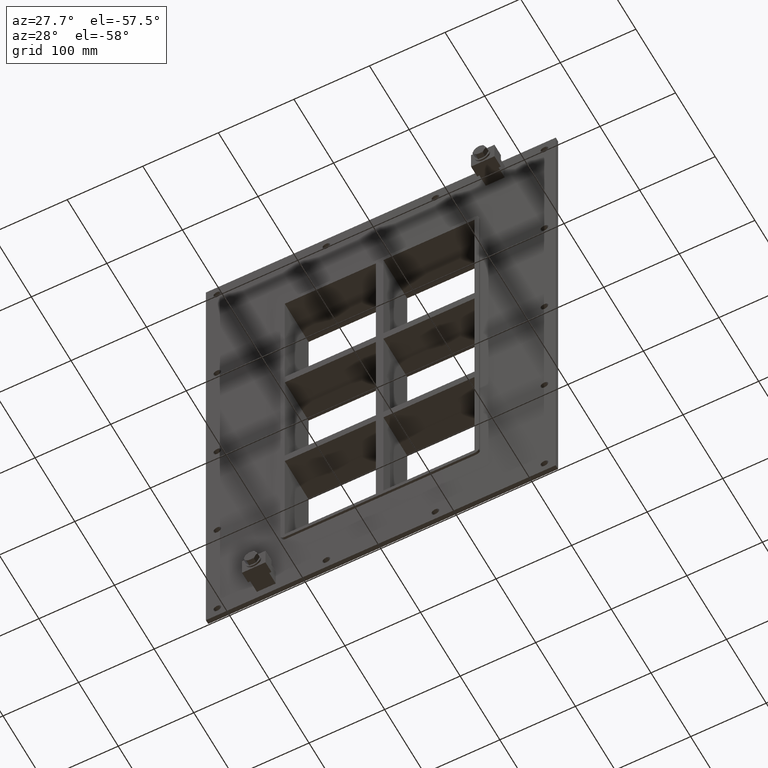
[diagram: clean part render]
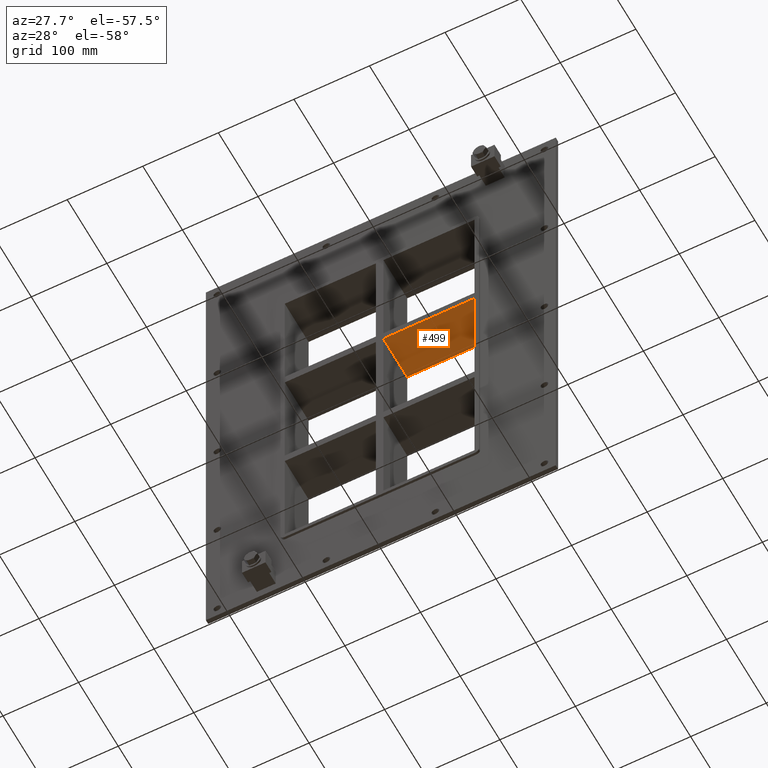
[diagram: same view with one face highlighted and labeled with its STEP entity id]
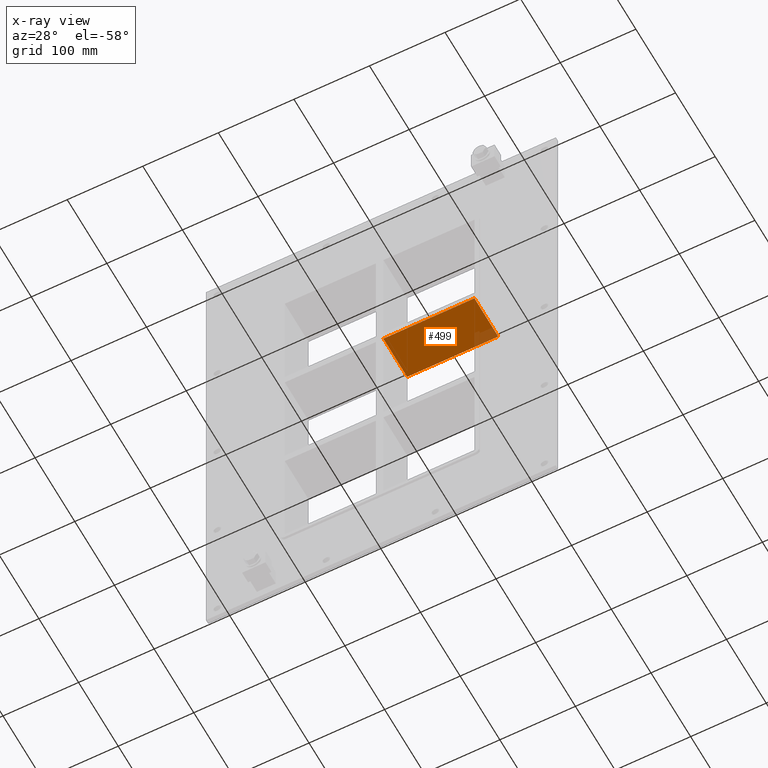
[diagram: x-ray of the same camera — body ghosted, the highlighted face saturated]
A machine part, auxiliary view. The second image highlights one B-rep face of the part: STEP entity #499.
The next image is the same camera in x-ray: the body ghosted, the highlighted face saturated — about 6% of this face is hidden behind the body in this view.
In plain terms, the highlighted planar face has unit normal (0, 0, -1).
Its self-contained STEP definition (entity closure, byte-faithful):
#460=CARTESIAN_POINT('',(125.49999999999272,-3.0,79.749999999989157));
#461=DIRECTION('',(0.0,0.0,-1.0));
#462=DIRECTION('',(-1.0,0.0,0.0));
#463=AXIS2_PLACEMENT_3D('',#460,#461,#462);
#464=PLANE('',#463);
#465=CARTESIAN_POINT('',(5.0,57.0,79.749999999989114));
#466=VERTEX_POINT('',#465);
#467=CARTESIAN_POINT('',(5.0,-3.0,79.749999999989129));
#468=VERTEX_POINT('',#467);
#469=CARTESIAN_POINT('',(5.0,57.0,79.749999999989114));
#470=DIRECTION('',(0.0,-1.0,0.0));
#471=VECTOR('',#470,60.0);
#472=LINE('',#469,#471);
#473=EDGE_CURVE('',#466,#468,#472,.T.);
#474=ORIENTED_EDGE('',*,*,#473,.F.);
#475=CARTESIAN_POINT('',(125.49999999999272,57.0,79.749999999989157));
#476=VERTEX_POINT('',#475);
#477=CARTESIAN_POINT('',(125.49999999999272,57.0,79.749999999989157));
#478=DIRECTION('',(-1.0,0.0,0.0));
#479=VECTOR('',#478,120.49999999999272);
#480=LINE('',#477,#479);
#481=EDGE_CURVE('',#476,#466,#480,.T.);
#482=ORIENTED_EDGE('',*,*,#481,.F.);
#483=CARTESIAN_POINT('',(125.49999999999272,-3.0,79.749999999989157));
#484=VERTEX_POINT('',#483);
#485=CARTESIAN_POINT('',(125.5,-3.0,79.749999999989143));
#486=DIRECTION('',(0.0,1.0,0.0));
#487=VECTOR('',#486,60.000000000000007);
#488=LINE('',#485,#487);
#489=EDGE_CURVE('',#484,#476,#488,.T.);
#490=ORIENTED_EDGE('',*,*,#489,.F.);
#491=CARTESIAN_POINT('',(125.49999999999272,-3.0,79.749999999989157));
#492=DIRECTION('',(-1.0,0.0,0.0));
#493=VECTOR('',#492,120.49999999999272);
#494=LINE('',#491,#493);
#495=EDGE_CURVE('',#484,#468,#494,.T.);
#496=ORIENTED_EDGE('',*,*,#495,.T.);
#497=EDGE_LOOP('',(#474,#482,#490,#496));
#498=FACE_OUTER_BOUND('',#497,.T.);
#499=ADVANCED_FACE('',(#498),#464,.T.);